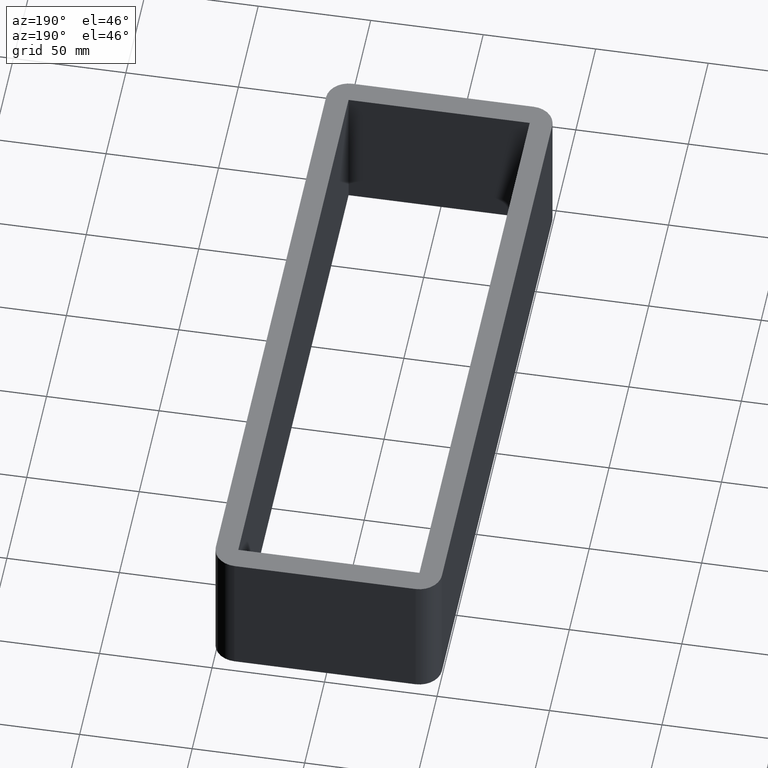
[diagram: clean part render]
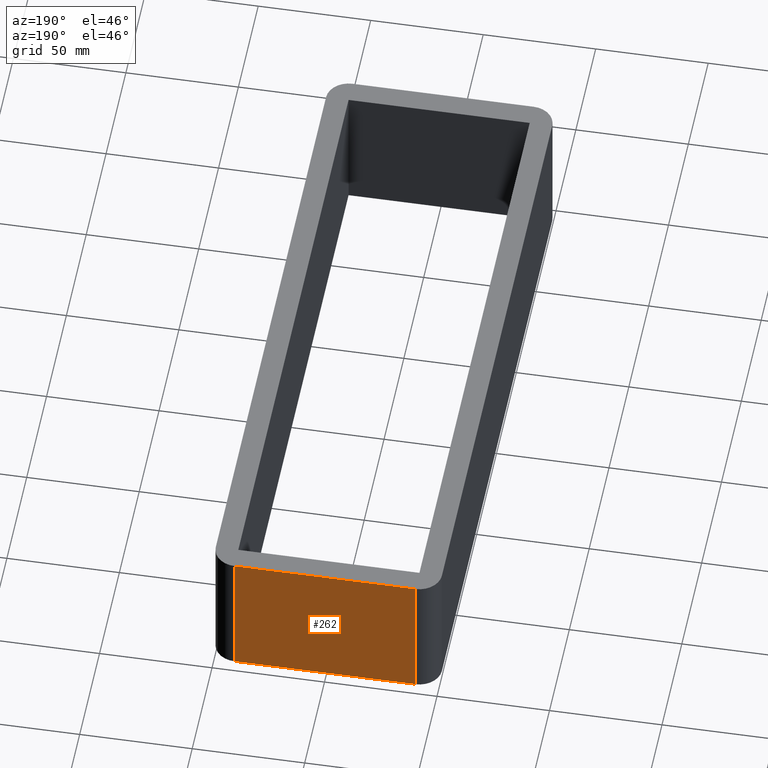
[diagram: same view with one face highlighted and labeled with its STEP entity id]
A machine part, auxiliary view. The second image highlights one B-rep face of the part: STEP entity #262.
In plain terms, the highlighted planar face has unit normal (0, 1, 0).
Its self-contained STEP definition (entity closure, byte-faithful):
#34=FACE_OUTER_BOUND('',#48,.T.);
#48=EDGE_LOOP('',(#195,#196,#197,#198));
#71=LINE('',#417,#99);
#73=LINE('',#423,#101);
#74=LINE('',#425,#102);
#75=LINE('',#426,#103);
#99=VECTOR('',#339,10.);
#101=VECTOR('',#345,10.);
#102=VECTOR('',#346,10.);
#103=VECTOR('',#347,10.);
#124=VERTEX_POINT('',#414);
#125=VERTEX_POINT('',#416);
#127=VERTEX_POINT('',#422);
#128=VERTEX_POINT('',#424);
#152=EDGE_CURVE('',#124,#125,#71,.T.);
#155=EDGE_CURVE('',#127,#124,#73,.T.);
#156=EDGE_CURVE('',#128,#127,#74,.T.);
#157=EDGE_CURVE('',#125,#128,#75,.T.);
#195=ORIENTED_EDGE('',*,*,#152,.F.);
#196=ORIENTED_EDGE('',*,*,#155,.F.);
#197=ORIENTED_EDGE('',*,*,#156,.F.);
#198=ORIENTED_EDGE('',*,*,#157,.F.);
#251=PLANE('',#298);
#262=ADVANCED_FACE('',(#34),#251,.T.);
#298=AXIS2_PLACEMENT_3D('',#421,#343,#344);
#339=DIRECTION('',(0.,0.,1.));
#343=DIRECTION('center_axis',(0.,1.,0.));
#344=DIRECTION('ref_axis',(1.,0.,0.));
#345=DIRECTION('',(1.,0.,0.));
#346=DIRECTION('',(0.,0.,-1.));
#347=DIRECTION('',(-1.,0.,0.));
#414=CARTESIAN_POINT('',(40.2499999999999,149.,-60.));
#416=CARTESIAN_POINT('',(40.2499999999999,149.,0.));
#417=CARTESIAN_POINT('',(40.2499999999999,149.,0.));
#421=CARTESIAN_POINT('Origin',(-50.2499999999999,149.,0.));
#422=CARTESIAN_POINT('',(-40.2499999999999,149.,-60.));
#423=CARTESIAN_POINT('',(50.2499999999999,149.,-60.));
#424=CARTESIAN_POINT('',(-40.2499999999999,149.,0.));
#425=CARTESIAN_POINT('',(-40.2499999999999,149.,0.));
#426=CARTESIAN_POINT('',(50.2499999999999,149.,0.));